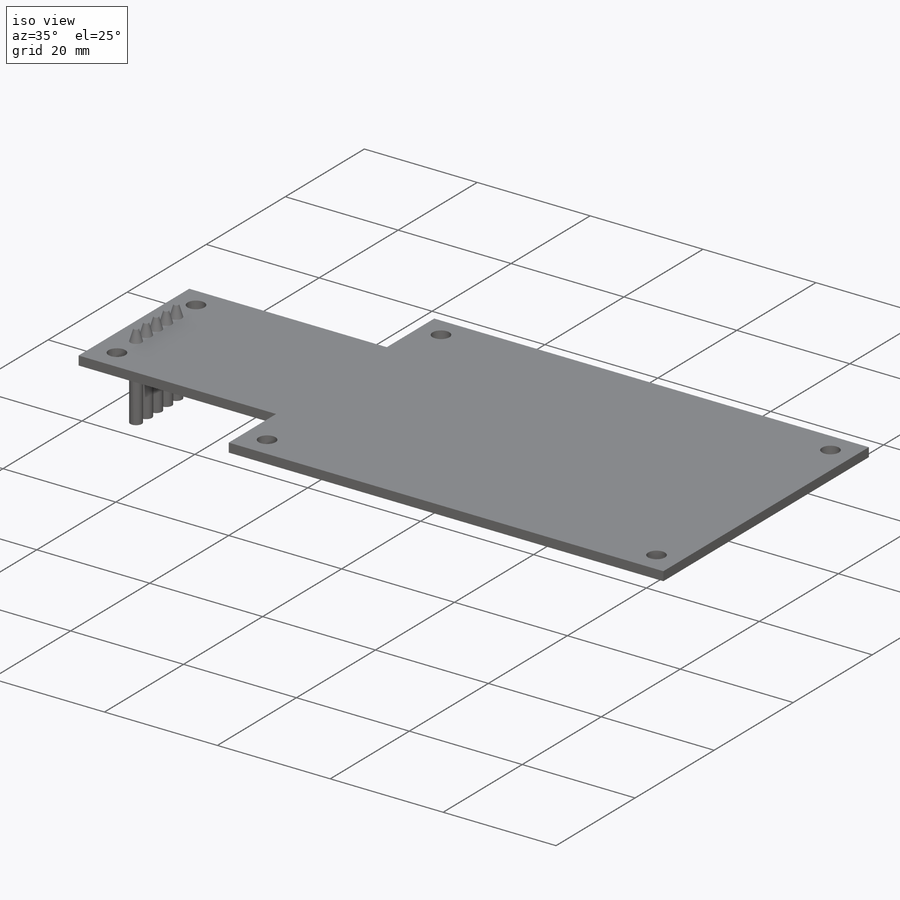
[diagram: iso view]
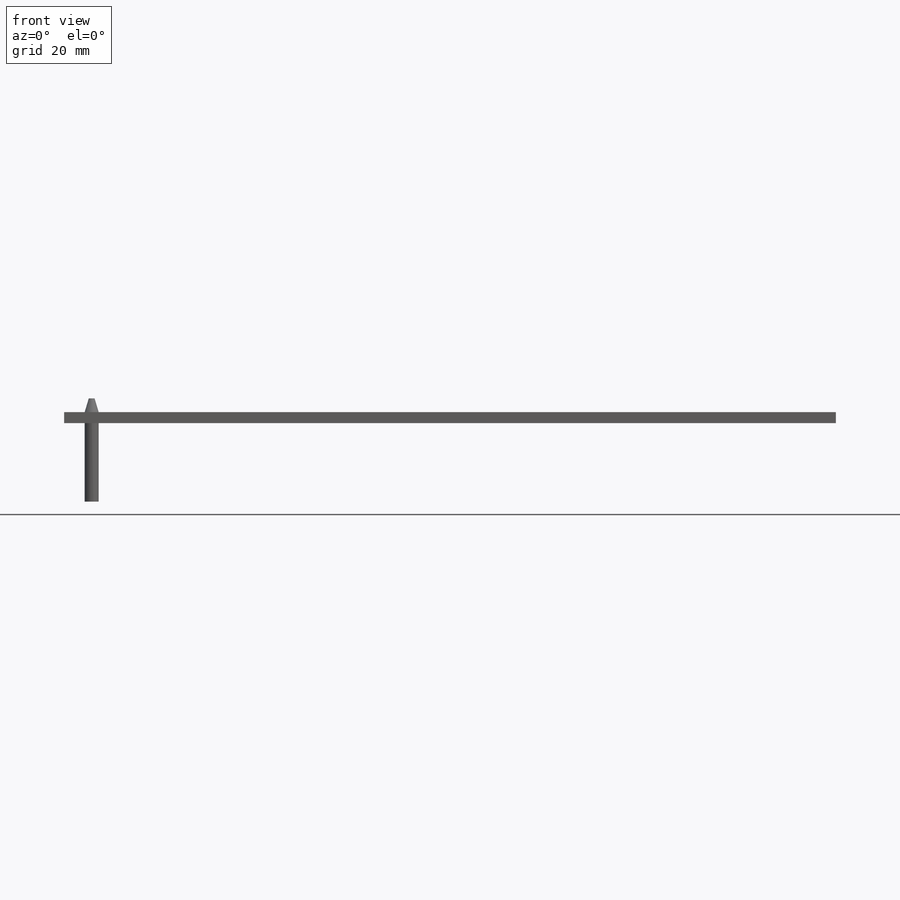
[diagram: front view]
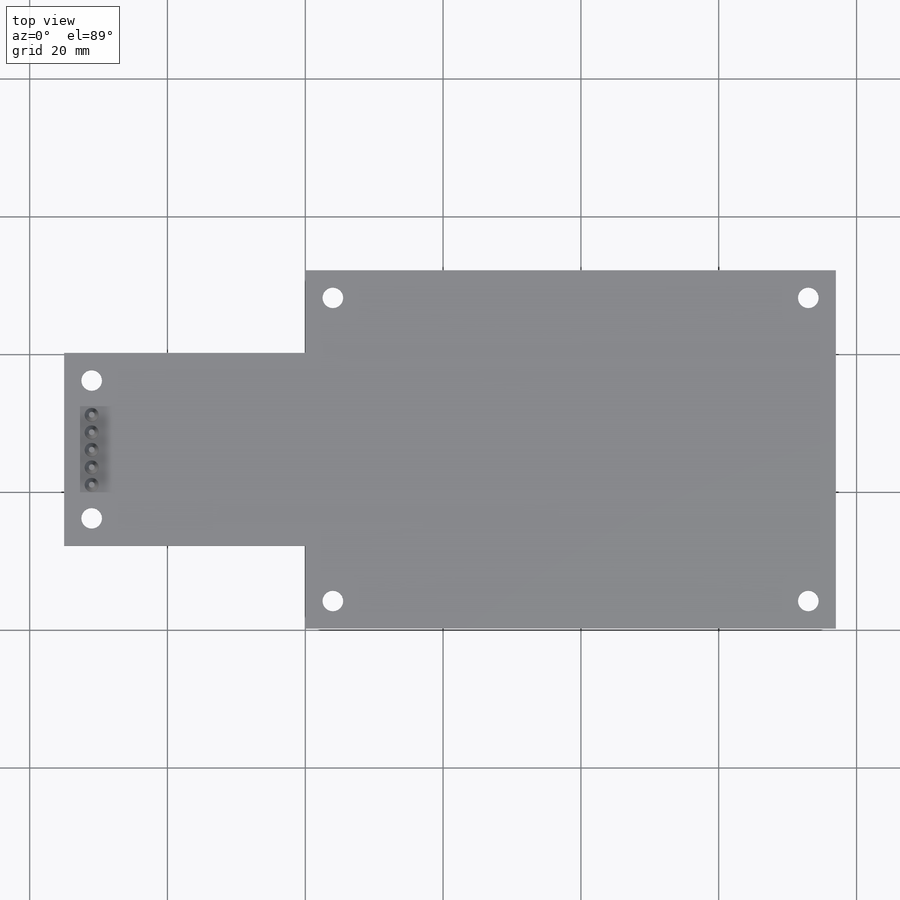
[diagram: top view]
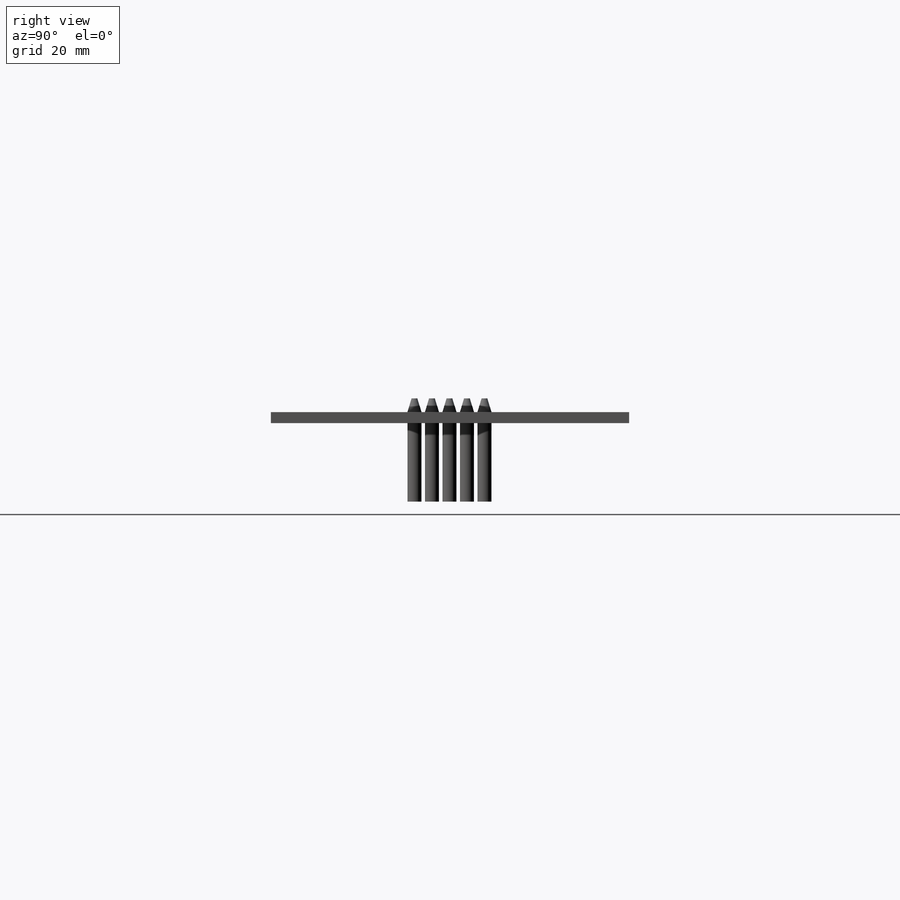
[diagram: right view]
SOLIDWORKS PART (.sldprt)
format: sldprt  version: not decoded by parser v0  size: 227,840 bytes
history: native  units: mm
features: plane x3, sketch x3, extrude x2, material x1, cut_extrude x1, chamfer x1 (+9 scaffold rows collapsed)
feature tree (20):
  scaffold x9  (default folders/planes/origin — collapsed)
  material  "Matériau <non spécifié>"
  plane  "Plan de face"
  plane  "Plan de dessus"
  plane  "Plan de droite"
  sketch  "Esquisse1"  dims[D1=77.0mm D2=52.0mm D3=35.0mm D4=12.0mm D5=12.0mm D6=28.0mm]
  extrude  "Boss.-Extru.1"  Depth=1.6mm
  sketch  "Esquisse2"  dims[c1.D1=~1.881666mm c1.D3=3.0mm c1.D5=3.0mm c1.D6=3.0mm c1.D8=3.0mm c1.D9=3.0mm c1.D10=3.0mm c1.D11=3.0mm c1.D12=3.0mm c1.D13=3.0mm c1.D14=3.0mm c1.D15=3.0mm c1.D16=3.0mm c1.D17=3.0mm c1.D18=3.0mm c2.D1=4.0mm c2.D2=4.0mm c2.D4=4.0mm c2.D5=4.0mm c2.D7=4.0mm c2.D8=4.0mm c2.D10=4.0mm c2.D11=4.0mm c2.D14=4.0mm c2.D15=4.0mm c2.D17=4.0mm c2.D18=4.0mm]
  cut_extrude  "Enlèv. mat.-Extru.1"  [1 undecoded]
  sketch  "Esquisse3"  dims[c1.D1=2.032mm c1.D2=2.032mm c1.D3=2.032mm c2.D2=4.0mm c2.D3=9.0mm c2.D4=5.0]
  extrude  "Boss.-Extru.2"  Depth=2mm
  chamfer  "Chanfrein1"  Distance=2mm
decode coverage: 6 of 7 modeling features carry decoded parameters
note: ~ marks probable driven/reference dimensions
note: 1 parameter value undecoded
note: suppression state not decoded; provenance and decode notes live in map.json
